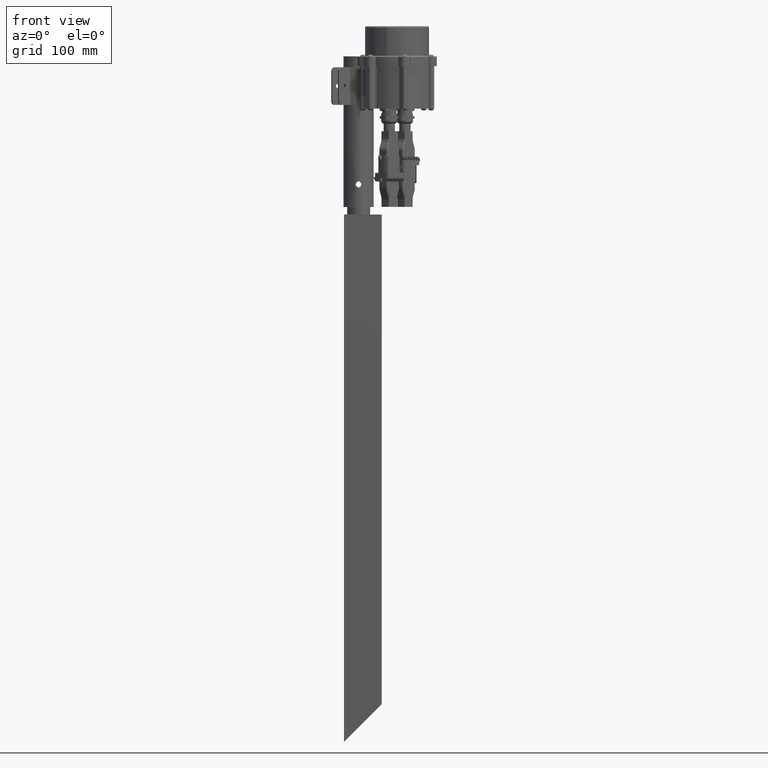
[diagram: clean part render]
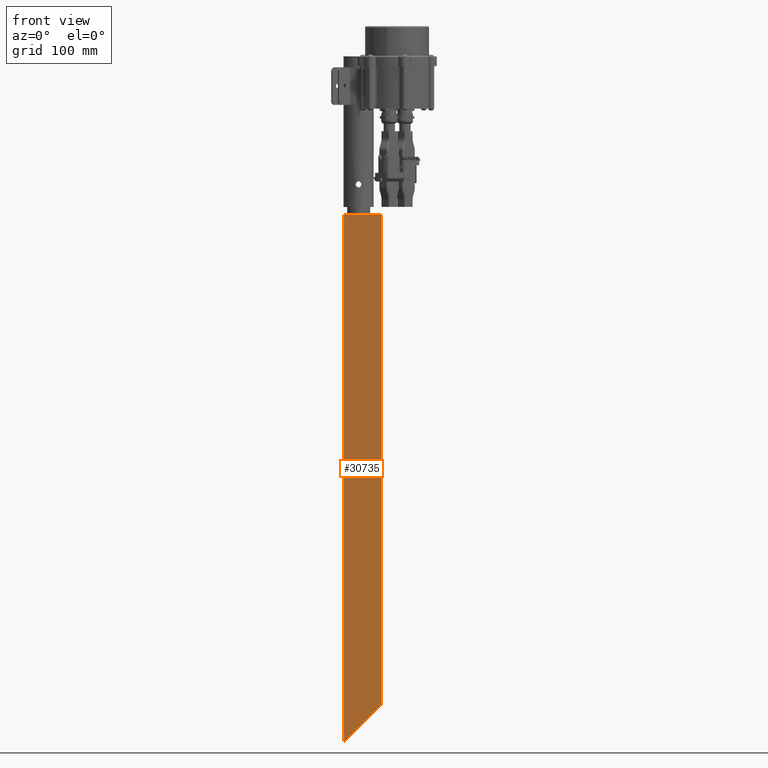
[diagram: same view with one face highlighted and labeled with its STEP entity id]
A machine part, front view. The second image highlights one B-rep face of the part: STEP entity #30735.
In plain terms, the highlighted planar face has unit normal (0, 1, 0).
Its self-contained STEP definition (entity closure, byte-faithful):
#1471 = VECTOR ( 'NONE', #28783, 1000.000000000000000 ) ;
#2446 = DIRECTION ( 'NONE',  ( 0.0000000000000000000, -0.0000000000000000000, 1.000000000000000000 ) ) ;
#3294 = FACE_OUTER_BOUND ( 'NONE', #17976, .T. ) ;
#3385 = LINE ( 'NONE', #30851, #26734 ) ;
#6358 = VERTEX_POINT ( 'NONE', #16557 ) ;
#8207 = CARTESIAN_POINT ( 'NONE',  ( 0.0000000000000000000, 0.0000000000000000000, 700.0000000000000000 ) ) ;
#8686 = EDGE_CURVE ( 'NONE', #31459, #19143, #32293, .T. ) ;
#10057 = VERTEX_POINT ( 'NONE', #30523 ) ;
#10381 = DIRECTION ( 'NONE',  ( -0.0000000000000000000, -0.0000000000000000000, -1.000000000000000000 ) ) ;
#10702 = ORIENTED_EDGE ( 'NONE', *, *, #36971, .F. ) ;
#14237 = DIRECTION ( 'NONE',  ( 0.7071067811865474600, 0.0000000000000000000, 0.7071067811865474600 ) ) ;
#16397 = ORIENTED_EDGE ( 'NONE', *, *, #8686, .T. ) ;
#16557 = CARTESIAN_POINT ( 'NONE',  ( 0.0000000000000000000, 0.0000000000000000000, 700.0000000000000000 ) ) ;
#17031 = PLANE ( 'NONE',  #20643 ) ;
#17361 = EDGE_CURVE ( 'NONE', #6358, #31459, #3385, .T. ) ;
#17976 = EDGE_LOOP ( 'NONE', ( #16397, #19326, #10702, #31887 ) ) ;
#19143 = VERTEX_POINT ( 'NONE', #23744 ) ;
#19326 = ORIENTED_EDGE ( 'NONE', *, *, #35702, .F. ) ;
#19963 = DIRECTION ( 'NONE',  ( 0.0000000000000000000, 1.000000000000000000, 0.0000000000000000000 ) ) ;
#20643 = AXIS2_PLACEMENT_3D ( 'NONE', #8207, #19963, #2446 ) ;
#22693 = VECTOR ( 'NONE', #14237, 1000.000000000000100 ) ;
#23375 = CARTESIAN_POINT ( 'NONE',  ( 0.0000000000000000000, 0.0000000000000000000, 0.0000000000000000000 ) ) ;
#23744 = CARTESIAN_POINT ( 'NONE',  ( 50.00000000000000700, 0.0000000000000000000, 50.00000000000000000 ) ) ;
#24794 = LINE ( 'NONE', #25852, #1471 ) ;
#25554 = DIRECTION ( 'NONE',  ( -0.0000000000000000000, -0.0000000000000000000, -1.000000000000000000 ) ) ;
#25852 = CARTESIAN_POINT ( 'NONE',  ( 0.0000000000000000000, 0.0000000000000000000, 700.0000000000000000 ) ) ;
#26734 = VECTOR ( 'NONE', #10381, 1000.000000000000000 ) ;
#28502 = VECTOR ( 'NONE', #25554, 1000.000000000000000 ) ;
#28783 = DIRECTION ( 'NONE',  ( 1.000000000000000000, 0.0000000000000000000, 0.0000000000000000000 ) ) ;
#30523 = CARTESIAN_POINT ( 'NONE',  ( 50.00000000000000000, 0.0000000000000000000, 700.0000000000000000 ) ) ;
#30735 = ADVANCED_FACE ( 'NONE', ( #3294 ), #17031, .F. ) ;
#30851 = CARTESIAN_POINT ( 'NONE',  ( 0.0000000000000000000, 0.0000000000000000000, 700.0000000000000000 ) ) ;
#31459 = VERTEX_POINT ( 'NONE', #23375 ) ;
#31887 = ORIENTED_EDGE ( 'NONE', *, *, #17361, .T. ) ;
#32293 = LINE ( 'NONE', #37659, #22693 ) ;
#35702 = EDGE_CURVE ( 'NONE', #10057, #19143, #36308, .T. ) ;
#36308 = LINE ( 'NONE', #37356, #28502 ) ;
#36971 = EDGE_CURVE ( 'NONE', #6358, #10057, #24794, .T. ) ;
#37356 = CARTESIAN_POINT ( 'NONE',  ( 50.00000000000000000, 0.0000000000000000000, 700.0000000000000000 ) ) ;
#37659 = CARTESIAN_POINT ( 'NONE',  ( 0.0000000000000000000, 0.0000000000000000000, 0.0000000000000000000 ) ) ;